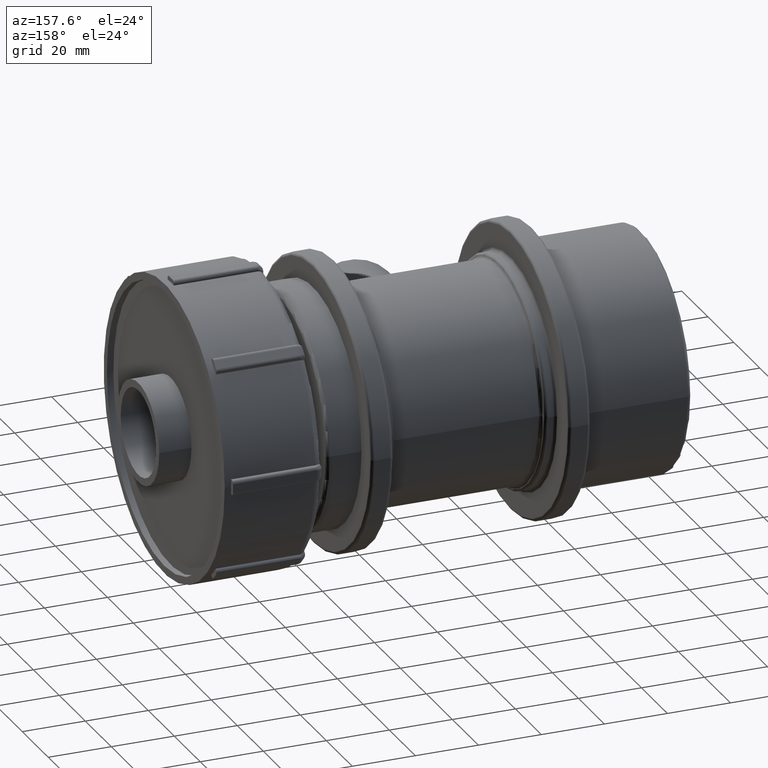
[diagram: clean part render]
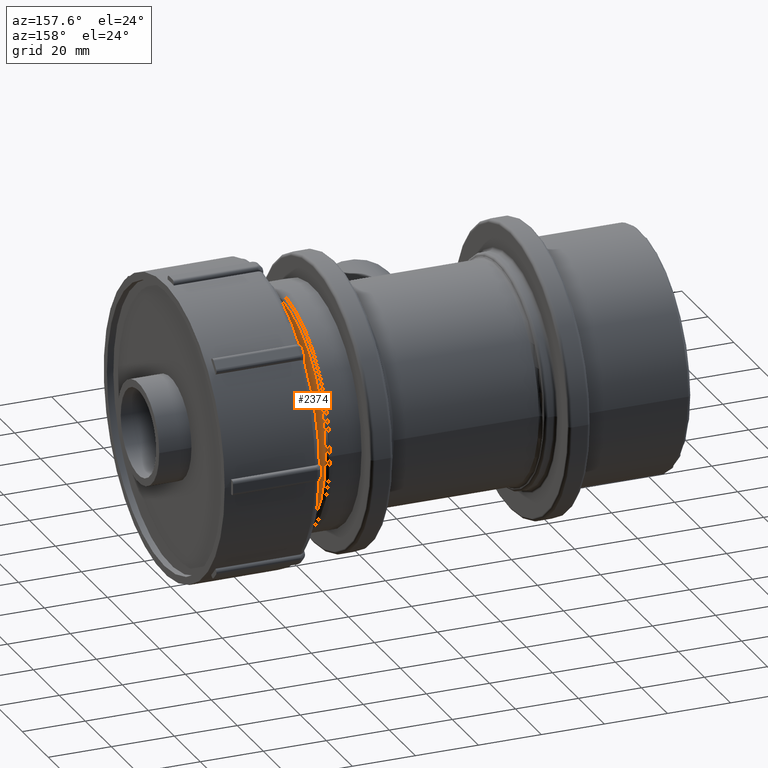
[diagram: same view with one face highlighted and labeled with its STEP entity id]
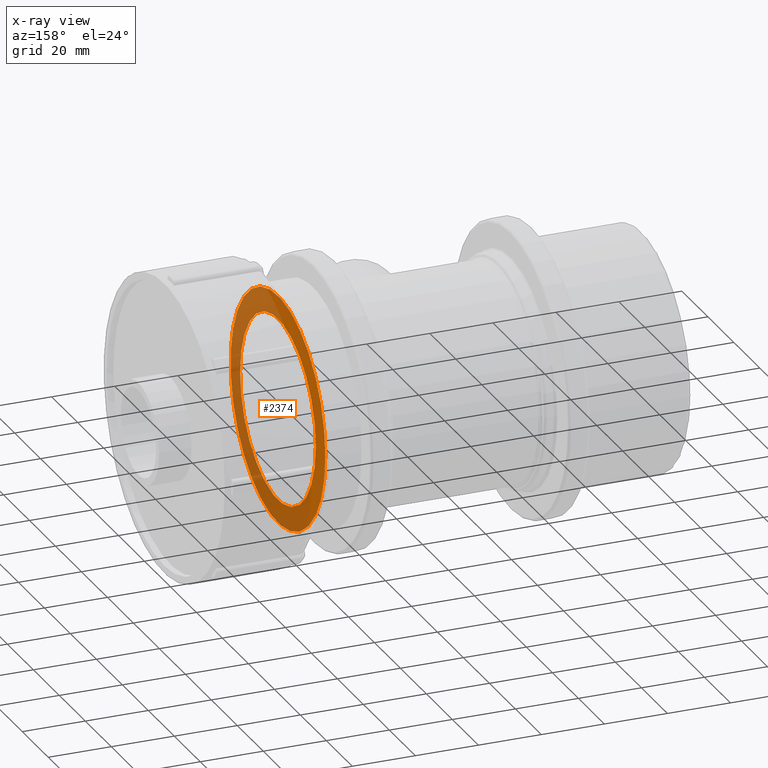
[diagram: x-ray of the same camera — body ghosted, the highlighted face saturated]
A machine part, auxiliary view. The second image highlights one B-rep face of the part: STEP entity #2374.
The next image is the same camera in x-ray: the body ghosted, the highlighted face saturated — about 62% of this face is hidden behind the body in this view.
In plain terms, the highlighted planar face has unit normal (1, 0, 0).
Its self-contained STEP definition (entity closure, byte-faithful):
#262=PLANE('',#2571);
#332=CIRCLE('',#2570,36.5);
#333=CIRCLE('',#2572,29.125);
#545=FACE_BOUND('',#797,.T.);
#602=FACE_OUTER_BOUND('',#796,.T.);
#796=EDGE_LOOP('',(#1650));
#797=EDGE_LOOP('',(#1651));
#1050=VERTEX_POINT('',#3752);
#1051=VERTEX_POINT('',#3755);
#1282=EDGE_CURVE('',#1050,#1050,#332,.T.);
#1283=EDGE_CURVE('',#1051,#1051,#333,.T.);
#1650=ORIENTED_EDGE('',*,*,#1282,.F.);
#1651=ORIENTED_EDGE('',*,*,#1283,.F.);
#2374=ADVANCED_FACE('',(#602,#545),#262,.T.);
#2570=AXIS2_PLACEMENT_3D('',#3753,#2946,#2947);
#2571=AXIS2_PLACEMENT_3D('',#3754,#2948,#2949);
#2572=AXIS2_PLACEMENT_3D('',#3756,#2950,#2951);
#2946=DIRECTION('center_axis',(-1.,0.,0.));
#2947=DIRECTION('ref_axis',(0.,-1.,1.83697019872103E-16));
#2948=DIRECTION('center_axis',(1.,0.,0.));
#2949=DIRECTION('ref_axis',(0.,0.,-1.));
#2950=DIRECTION('center_axis',(1.,0.,0.));
#2951=DIRECTION('ref_axis',(0.,-1.,1.83697019872103E-16));
#3752=CARTESIAN_POINT('',(45.895,36.5,-1.11749020422196E-14));
#3753=CARTESIAN_POINT('Origin',(45.895,0.,0.));
#3754=CARTESIAN_POINT('Origin',(45.895,28.125,0.));
#3755=CARTESIAN_POINT('',(45.895,29.125,-1.78339190125833E-15));
#3756=CARTESIAN_POINT('Origin',(45.895,0.,0.));